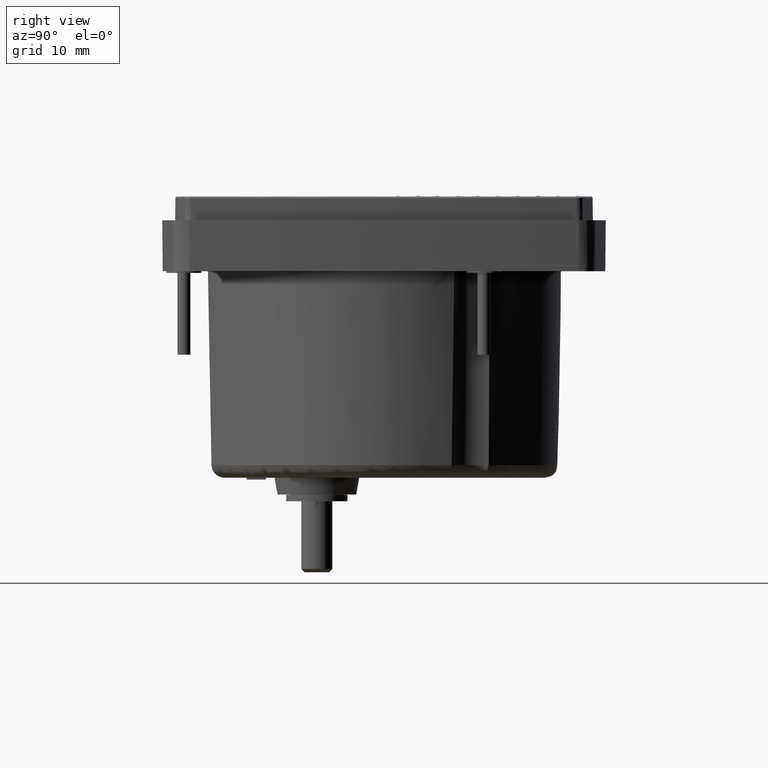
[diagram: clean part render]
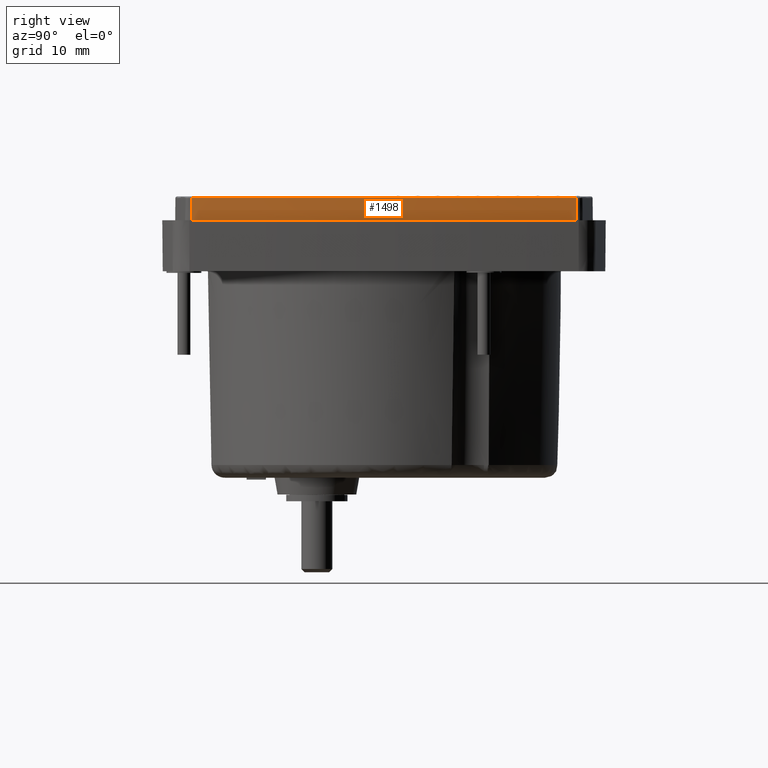
[diagram: same view with one face highlighted and labeled with its STEP entity id]
A machine part, right view. The second image highlights one B-rep face of the part: STEP entity #1498.
In plain terms, the highlighted conical surface has half-angle 0.5 deg.
Its self-contained STEP definition (entity closure, byte-faithful):
#625 = ORIENTED_EDGE ( 'NONE', *, *, #1727, .T. ) ;
#838 = VERTEX_POINT ( 'NONE', #33041 ) ;
#915 = DIRECTION ( 'NONE',  ( -0.008680741354655211947, -0.0008928332229089201580, 0.9999619230642582401 ) ) ;
#1220 = DIRECTION ( 'NONE',  ( 0.000000000000000000, 1.000000000000000000, 0.000000000000000000 ) ) ;
#1498 = ADVANCED_FACE ( 'NONE', ( #10571 ), #17630, .T. ) ;
#1544 = CARTESIAN_POINT ( 'NONE',  ( 1.783192168507389708, -1.385341926379248134, 0.4311878596016551768 ) ) ;
#1727 = EDGE_CURVE ( 'NONE', #28810, #23043, #5089, .T. ) ;
#3178 = EDGE_CURVE ( 'NONE', #13525, #28810, #16486, .T. ) ;
#4100 = VERTEX_POINT ( 'NONE', #34994 ) ;
#4288 = AXIS2_PLACEMENT_3D ( 'NONE', #25198, #43852, #1220 ) ;
#5089 = CIRCLE ( 'NONE', #4288, 11.49869440560759948 ) ;
#6428 = VECTOR ( 'NONE', #915, 39.37007874015748854 ) ;
#9086 = CARTESIAN_POINT ( 'NONE',  ( 1.785670779147350284, -1.385596856901374352, 0.1456688976378031353 ) ) ;
#10346 = CARTESIAN_POINT ( 'NONE',  ( -9.653980811246613669, -0.2090036857513905555, 0.2952751968502389524 ) ) ;
#10571 = FACE_OUTER_BOUND ( 'NONE', #28336, .T. ) ;
#10801 = DIRECTION ( 'NONE',  ( 0.000000000000000000, 0.000000000000000000, 1.000000000000000000 ) ) ;
#12436 = EDGE_CURVE ( 'NONE', #23043, #4100, #38210, .T. ) ;
#13525 = VERTEX_POINT ( 'NONE', #1544 ) ;
#14699 = ORIENTED_EDGE ( 'NONE', *, *, #3178, .T. ) ;
#15777 = AXIS2_PLACEMENT_3D ( 'NONE', #28735, #10801, #44422 ) ;
#16227 = DIRECTION ( 'NONE',  ( 0.008680741354655211947, -0.0008928332229089183149, -0.9999619230642582401 ) ) ;
#16486 = LINE ( 'NONE', #9086, #20548 ) ;
#17630 = CONICAL_SURFACE ( 'NONE', #38015, 11.49869440560759948, 0.008726646249992607574 ) ;
#18213 = CARTESIAN_POINT ( 'NONE',  ( -9.653980811246613669, -0.2090036857513905555, 0.4311878596013700715 ) ) ;
#19579 = CARTESIAN_POINT ( 'NONE',  ( 1.785670779147354281, 0.9675894853985944621, 0.1456688976378031353 ) ) ;
#20548 = VECTOR ( 'NONE', #16227, 39.37007874015748854 ) ;
#21059 = CARTESIAN_POINT ( 'NONE',  ( 1.784372036106708803, -1.385463278340820947, 0.2952751968500917368 ) ) ;
#22020 = CIRCLE ( 'NONE', #15777, 11.49750831376720406 ) ;
#22184 = EDGE_CURVE ( 'NONE', #838, #4100, #22020, .T. ) ;
#22506 = CIRCLE ( 'NONE', #23284, 11.49750831376720406 ) ;
#23043 = VERTEX_POINT ( 'NONE', #40564 ) ;
#23284 = AXIS2_PLACEMENT_3D ( 'NONE', #18213, #29466, #45174 ) ;
#25198 = CARTESIAN_POINT ( 'NONE',  ( -9.653980811246613669, -0.2090036857513905555, 0.2952751968503724012 ) ) ;
#26438 = ORIENTED_EDGE ( 'NONE', *, *, #12436, .T. ) ;
#27371 = ORIENTED_EDGE ( 'NONE', *, *, #22184, .F. ) ;
#28336 = EDGE_LOOP ( 'NONE', ( #26438, #27371, #39726, #14699, #625 ) ) ;
#28735 = CARTESIAN_POINT ( 'NONE',  ( -9.653980811246613669, -0.2090036857513905555, 0.4311878596013700715 ) ) ;
#28810 = VERTEX_POINT ( 'NONE', #21059 ) ;
#29466 = DIRECTION ( 'NONE',  ( 0.000000000000000000, 0.000000000000000000, 1.000000000000000000 ) ) ;
#33041 = CARTESIAN_POINT ( 'NONE',  ( 1.843527502520591277, -0.2090036857513905555, 0.4311878596013700715 ) ) ;
#34994 = CARTESIAN_POINT ( 'NONE',  ( 1.783192168507385933, 0.9673345548764644697, 0.4311878596016487930 ) ) ;
#36828 = DIRECTION ( 'NONE',  ( 0.000000000000000000, 0.000000000000000000, -1.000000000000000000 ) ) ;
#37083 = DIRECTION ( 'NONE',  ( 0.000000000000000000, 1.000000000000000000, 0.000000000000000000 ) ) ;
#38015 = AXIS2_PLACEMENT_3D ( 'NONE', #10346, #36828, #37083 ) ;
#38210 = LINE ( 'NONE', #19579, #6428 ) ;
#39726 = ORIENTED_EDGE ( 'NONE', *, *, #39742, .F. ) ;
#39742 = EDGE_CURVE ( 'NONE', #13525, #838, #22506, .T. ) ;
#40564 = CARTESIAN_POINT ( 'NONE',  ( 1.784372036106708803, 0.9674559068380373938, 0.2952751968500917368 ) ) ;
#43852 = DIRECTION ( 'NONE',  ( -0.000000000000000000, -0.000000000000000000, 1.000000000000000000 ) ) ;
#44422 = DIRECTION ( 'NONE',  ( 1.000000000000000000, 0.000000000000000000, 0.000000000000000000 ) ) ;
#45174 = DIRECTION ( 'NONE',  ( 1.000000000000000000, 0.000000000000000000, 0.000000000000000000 ) ) ;